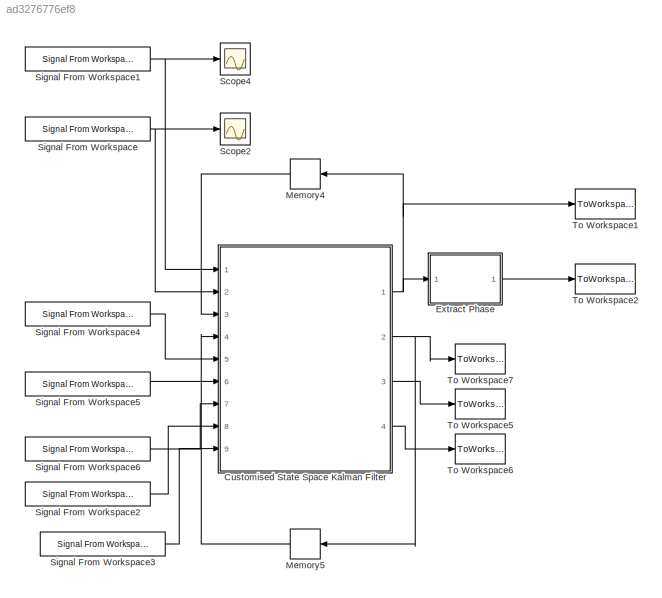
MODEL slx_ad3276776ef8
KIND model
CONFIG AbsTol = auto
CONFIG EnableMultiTasking = off
CONFIG FixedStep = model.Ts
CONFIG MaxStep = auto
CONFIG MinStep = auto
CONFIG RelTol = 1e-6
CONFIG SampleTimeConstraint = Unconstrained
CONFIG Solver = VariableStepAuto
CONFIG SolverName = VariableStepAuto
CONFIG StartTime = 0.0
CONFIG StopTime = combined_model.sim_dur
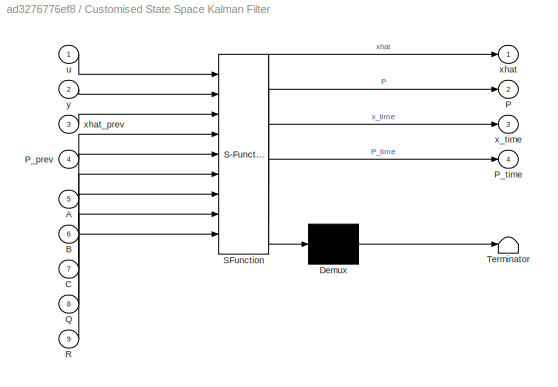
BLOCK [SubSystem] Customised State Space Kalman Filter
  ErrorFcn = Stateflow.Translate.translate
  PermitHierarchicalResolution = ExplicitOnly
  Ports = [9, 4]
  RequestExecContextInheritance = off
  SFBlockType = MATLAB Function
  TreatAsAtomicUnit = on
BLOCK [Demux] Customised State Space Kalman Filter/ Demux 
  Outputs = 1
  Ports = [1, 1]
BLOCK [S-Function] Customised State Space Kalman Filter/ SFunction 
  EnableBusSupport = on
  FunctionName = sf_sfun
  PortCounts = [9 5]
  Ports = [9, 5]
  SFcnIsStateOwnerBlock = off
  SFunctionDeploymentMode = off
  Tag = Stateflow S-Function 6
BLOCK [Terminator] Customised State Space Kalman Filter/ Terminator 
BLOCK [Inport] Customised State Space Kalman Filter/A
  IconDisplay = Port number
  Port = 5
BLOCK [Inport] Customised State Space Kalman Filter/B
  IconDisplay = Port number
  Port = 6
BLOCK [Inport] Customised State Space Kalman Filter/C
  IconDisplay = Port number
  Port = 7
BLOCK [Outport] Customised State Space Kalman Filter/P
  IconDisplay = Port number
  Port = 2
BLOCK [Inport] Customised State Space Kalman Filter/P_prev
  IconDisplay = Port number
  Port = 4
BLOCK [Outport] Customised State Space Kalman Filter/P_time
  IconDisplay = Port number
  Port = 4
BLOCK [Inport] Customised State Space Kalman Filter/Q
  IconDisplay = Port number
  Port = 8
BLOCK [Inport] Customised State Space Kalman Filter/R
  IconDisplay = Port number
  Port = 9
BLOCK [Inport] Customised State Space Kalman Filter/u
  IconDisplay = Port number
BLOCK [Outport] Customised State Space Kalman Filter/x_time
  IconDisplay = Port number
  Port = 3
BLOCK [Outport] Customised State Space Kalman Filter/xhat
  IconDisplay = Port number
BLOCK [Inport] Customised State Space Kalman Filter/xhat_prev
  IconDisplay = Port number
  Port = 3
BLOCK [Inport] Customised State Space Kalman Filter/y
  IconDisplay = Port number
  Port = 2
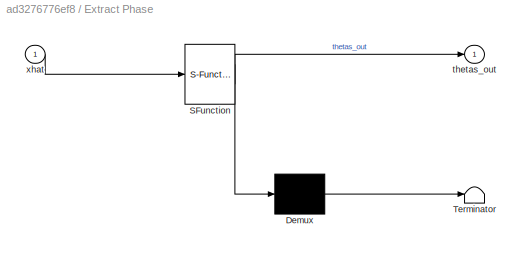
BLOCK [SubSystem] Extract Phase
  ErrorFcn = Stateflow.Translate.translate
  PermitHierarchicalResolution = ExplicitOnly
  Ports = [1, 1]
  RequestExecContextInheritance = off
  SFBlockType = MATLAB Function
  TreatAsAtomicUnit = on
BLOCK [Demux] Extract Phase/ Demux 
  Outputs = 1
  Ports = [1, 1]
BLOCK [S-Function] Extract Phase/ SFunction 
  EnableBusSupport = on
  FunctionName = sf_sfun
  PortCounts = [1 2]
  Ports = [1, 2]
  SFcnIsStateOwnerBlock = off
  SFunctionDeploymentMode = off
  Tag = Stateflow S-Function 2
BLOCK [Terminator] Extract Phase/ Terminator 
BLOCK [Outport] Extract Phase/thetas_out
  IconDisplay = Port number
BLOCK [Inport] Extract Phase/xhat
  IconDisplay = Port number
BLOCK [Memory] Memory4
  InheritSampleTime = on
  InitialCondition = combined_model.x_0
BLOCK [Memory] Memory5
  InheritSampleTime = on
  InitialCondition = combined_model.P0
BLOCK [Scope] Scope2
  Floating = off
  NumInputPorts = 1
  Ports = [1]
  ScopeSpecificationString = Simulink.scopes.TimeScopeBlockCfg('CurrentConfiguration', extmgr.ConfigurationSet(extmgr.Configuration('Core','General UI',true),extmgr.Configuration('Core','Source UI',true),extmgr.Configuration('Sources','WiredSimulink',true,'DataLoggingVariableName','ScopeData1'),extmgr.Configuration('Visuals','Time Domain',true,'SerializedDisplays',{struct('MinYLimReal','-0.48787','MaxYLimReal','0.48787','YLab...<+1451ch>
BLOCK [Scope] Scope4
  Floating = off
  NumInputPorts = 1
  Ports = [1]
  ScopeSpecificationString = Simulink.scopes.TimeScopeBlockCfg('CurrentConfiguration', extmgr.ConfigurationSet(extmgr.Configuration('Core','General UI',true),extmgr.Configuration('Core','Source UI',true),extmgr.Configuration('Sources','WiredSimulink',true),extmgr.Configuration('Visuals','Time Domain',true,'SerializedDisplays',{struct('MinYLimReal','-1.00000','MaxYLimReal','1.00000','YLabelReal','','MinYLimMag','0.00000','MaxY...<+1371ch>
BLOCK [Reference] Signal From Workspace  REF=dspsrcs4/Signal From
Workspace
  Ports = [0, 1]
  SourceBlock = dspsrcs4/Signal From\nWorkspace
  SourceProductBaseCode = DS
  SourceProductName = DSP System Toolbox
  SourceType = Signal From Workspace
BLOCK [Reference] Signal From Workspace1  REF=dspsrcs4/Signal From
Workspace
  Ports = [0, 1]
  SourceBlock = dspsrcs4/Signal From\nWorkspace
  SourceProductBaseCode = DS
  SourceProductName = DSP System Toolbox
  SourceType = Signal From Workspace
BLOCK [Reference] Signal From Workspace2  REF=dspsrcs4/Signal From
Workspace
  Ports = [0, 1]
  SourceBlock = dspsrcs4/Signal From\nWorkspace
  SourceProductBaseCode = DS
  SourceProductName = DSP System Toolbox
  SourceType = Signal From Workspace
BLOCK [Reference] Signal From Workspace3  REF=dspsrcs4/Signal From
Workspace
  Ports = [0, 1]
  SourceBlock = dspsrcs4/Signal From\nWorkspace
  SourceProductBaseCode = DS
  SourceProductName = DSP System Toolbox
  SourceType = Signal From Workspace
BLOCK [Reference] Signal From Workspace4  REF=dspsrcs4/Signal From
Workspace
  Ports = [0, 1]
  SourceBlock = dspsrcs4/Signal From\nWorkspace
  SourceProductBaseCode = DS
  SourceProductName = DSP System Toolbox
  SourceType = Signal From Workspace
BLOCK [Reference] Signal From Workspace5  REF=dspsrcs4/Signal From
Workspace
  Ports = [0, 1]
  SourceBlock = dspsrcs4/Signal From\nWorkspace
  SourceProductBaseCode = DS
  SourceProductName = DSP System Toolbox
  SourceType = Signal From Workspace
BLOCK [Reference] Signal From Workspace6  REF=dspsrcs4/Signal From
Workspace
  Ports = [0, 1]
  SourceBlock = dspsrcs4/Signal From\nWorkspace
  SourceProductBaseCode = DS
  SourceProductName = DSP System Toolbox
  SourceType = Signal From Workspace
BLOCK [ToWorkspace] To Workspace1
  MaxDataPoints = inf
  Ports = [1]
  SampleTime = combined_model.Ts
  Save2DSignal = 2-D array (concatenate along first dimension)
  VariableName = xtt
BLOCK [ToWorkspace] To Workspace2
  MaxDataPoints = inf
  Ports = [1]
  SampleTime = combined_model.Ts
  Save2DSignal = 2-D array (concatenate along first dimension)
  VariableName = thetas
BLOCK [ToWorkspace] To Workspace5
  MaxDataPoints = inf
  Ports = [1]
  SampleTime = combined_model.Ts
  Save2DSignal = 2-D array (concatenate along first dimension)
  VariableName = xtt_1
BLOCK [ToWorkspace] To Workspace6
  MaxDataPoints = inf
  Ports = [1]
  SampleTime = combined_model.Ts
  Save2DSignal = 2-D array (concatenate along first dimension)
  VariableName = Ptt_1
BLOCK [ToWorkspace] To Workspace7
  MaxDataPoints = inf
  Ports = [1]
  SampleTime = combined_model.Ts
  Save2DSignal = 2-D array (concatenate along first dimension)
  VariableName = Ptt
NET Customised State Space Kalman Filter:1 -> Extract Phase:1, Memory4:1, To Workspace1:1
NET Customised State Space Kalman Filter:2 -> Memory5:1, To Workspace7:1
LINE Customised State Space Kalman Filter:3 -> To Workspace5:1
LINE Customised State Space Kalman Filter:4 -> To Workspace6:1
LINE Extract Phase:1 -> To Workspace2:1
LINE Memory4:1 -> Customised State Space Kalman Filter:3
LINE Memory5:1 -> Customised State Space Kalman Filter:4
NET Signal From Workspace1:1 -> Customised State Space Kalman Filter:1, Scope4:1
LINE Signal From Workspace2:1 -> Customised State Space Kalman Filter:8
LINE Signal From Workspace3:1 -> Customised State Space Kalman Filter:9
LINE Signal From Workspace4:1 -> Customised State Space Kalman Filter:5
LINE Signal From Workspace5:1 -> Customised State Space Kalman Filter:6
LINE Signal From Workspace6:1 -> Customised State Space Kalman Filter:7
NET Signal From Workspace:1 -> Customised State Space Kalman Filter:2, Scope2:1
note: NET lines group one-source signal fan-out (src -> all destinations, sorted); 1:1 wires keep LINE
CHART Extract Phase states=1 transitions=1
  STATE_LABEL 'eML_blk_kernel()'
  STATE_LABEL 'SCRIPT:\nfunction thetas_out  = extract_phase(xhat)\n\nthetas_out = atan2(xhat(8), xhat(7))'
CHART Customised State Space
Kalman Filter states=1 transitions=1
  STATE_LABEL 'eML_blk_kernel()'
  STATE_LABEL "SCRIPT:\nfunction [xhat, P, x_time, P_time] = combined_kalman(u, y, xhat_prev, P_prev, A, B, C, Q, R)\nx_time = A*xhat_prev + B*u;\nP_time = A*P_prev*A'+ Q;\n\nK = P_time*(C')*pinv(C*P_time*C' + R);\nepsilon = y - C*x_time;\n\nxhat = x_time + K*epsilon;\nP = P_time - K*C*P_time;\nend"
